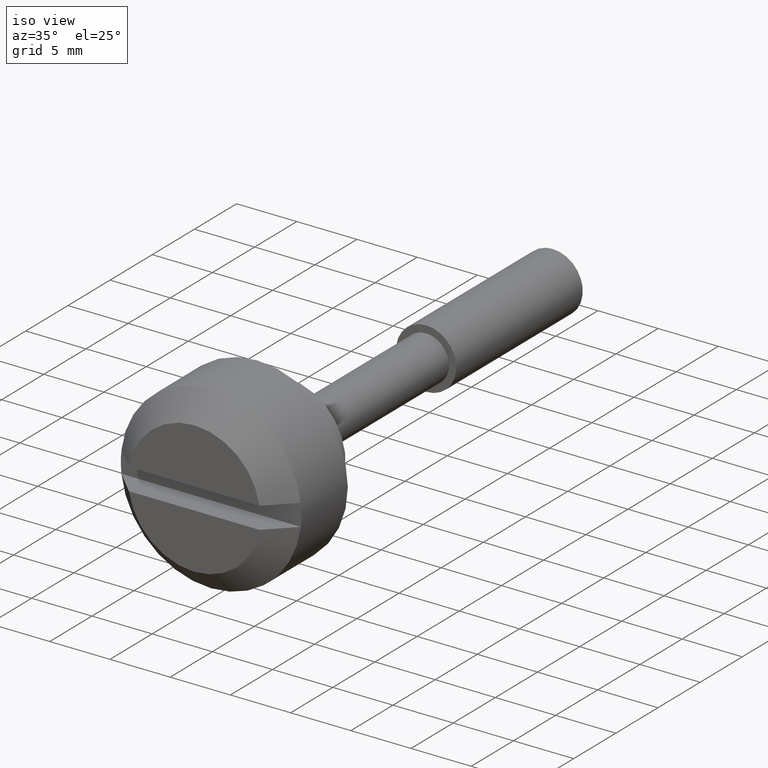
[diagram: clean part render]
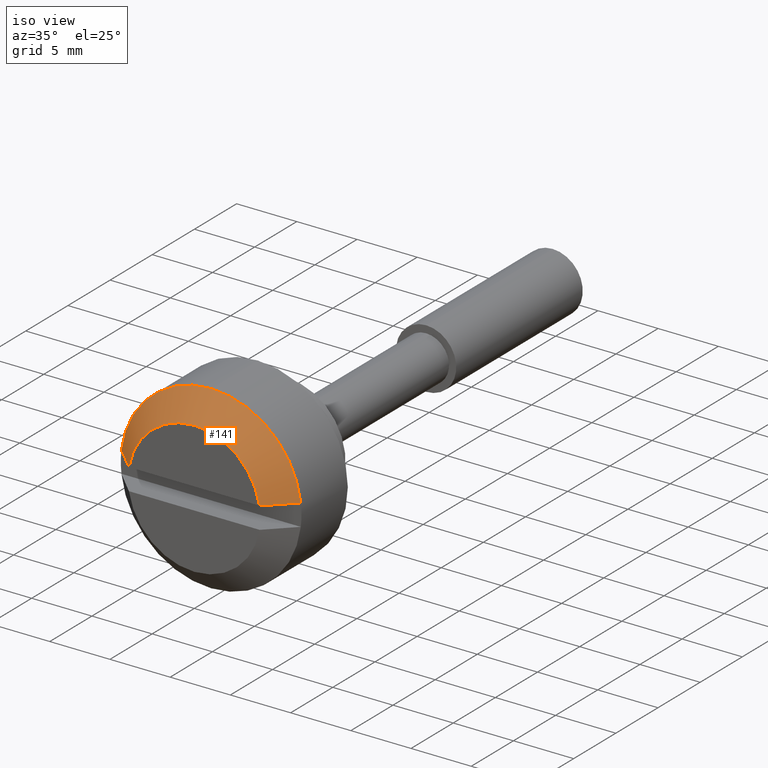
[diagram: same view with one face highlighted and labeled with its STEP entity id]
A machine part, iso view. The second image highlights one B-rep face of the part: STEP entity #141.
In plain terms, the highlighted face is a freeform B-spline surface patch.
Its self-contained STEP definition (entity closure, byte-faithful):
#141=ADVANCED_FACE('',(#450),#449,.T.);
#449=( BOUNDED_SURFACE() B_SPLINE_SURFACE( 2,1,((#735,#736),(#737,#738),(#739,#740),(#741,#742),(#743,#744)), .UNSPECIFIED.,.F.,.F.,.F.) B_SPLINE_SURFACE_WITH_KNOTS((3,2,3),(2,2),(0.00000000000E+00,5.00000000000E-01,1.00000000000E+00),(0.00000000000E+00,1.00000000000E+00), .UNSPECIFIED. ) GEOMETRIC_REPRESENTATION_ITEM() RATIONAL_B_SPLINE_SURFACE(((1.00000000000E+00,1.00000000000E+00),(7.48305015444E-01,7.48305015444E-01),(1.00000000000E+00,1.00000000000E+00),(7.48305015444E-01,7.48305015444E-01),(1.00000000000E+00,1.00000000000E+00))) REPRESENTATION_ITEM('') SURFACE() );
#450=FACE_OUTER_BOUND('',#745,.T.);
#735=CARTESIAN_POINT('',(-1.00004377704E+01,5.45977515462E+00,6.59499867979E-01));
#736=CARTESIAN_POINT('',(-7.99936222960E+00,7.44640985888E+00,8.99470432347E-01));
#737=CARTESIAN_POINT('',(-1.00004377704E+01,4.87514402087E+00,5.49946222987E+00));
#738=CARTESIAN_POINT('',(-7.99936222960E+00,6.64905045947E+00,7.50053777075E+00));
#739=CARTESIAN_POINT('',(-1.00004377704E+01,-2.98918445552E-10,5.49946222961E+00));
#740=CARTESIAN_POINT('',(-7.99936222960E+00,-4.07685107895E-10,7.50053777039E+00));
#741=CARTESIAN_POINT('',(-1.00004377704E+01,-4.87514402146E+00,5.49946222934E+00));
#742=CARTESIAN_POINT('',(-7.99936222960E+00,-6.64905046029E+00,7.50053777003E+00));
#743=CARTESIAN_POINT('',(-1.00004377704E+01,-5.45977515469E+00,6.59499867385E-01));
#744=CARTESIAN_POINT('',(-7.99936222960E+00,-7.44640985898E+00,8.99470431538E-01));
#745=EDGE_LOOP('',(#971,#972,#973,#974,#975));
#971=ORIENTED_EDGE('',*,*,#1106,.T.);
#972=ORIENTED_EDGE('',*,*,#1107,.T.);
#973=ORIENTED_EDGE('',*,*,#1105,.F.);
#974=ORIENTED_EDGE('',*,*,#1092,.F.);
#975=ORIENTED_EDGE('',*,*,#1104,.F.);
#1092=EDGE_CURVE('',#1568,#1569,#1570,.T.);
#1104=EDGE_CURVE('',#1630,#1568,#1649,.T.);
#1105=EDGE_CURVE('',#1569,#1629,#1655,.T.);
#1106=EDGE_CURVE('',#1630,#1661,#1662,.T.);
#1107=EDGE_CURVE('',#1661,#1629,#1668,.T.);
#1568=VERTEX_POINT('',#2051);
#1569=VERTEX_POINT('',#2052);
#1570=CIRCLE('',#2056,5.50000000000E+00);
#1629=VERTEX_POINT('',#2091);
#1630=VERTEX_POINT('',#2092);
#1649=(BOUNDED_CURVE() B_SPLINE_CURVE(3,(#2104,#2105,#2106,#2107),.UNSPECIFIED.,.F.,.F.) B_SPLINE_CURVE_WITH_KNOTS((4,4),(1.27287149362E-02,1.55712763781E-02),.UNSPECIFIED.) CURVE() GEOMETRIC_REPRESENTATION_ITEM() RATIONAL_B_SPLINE_CURVE((1.00000000000E+00,1.00000000000E+00,1.00000000000E+00,1.00000000000E+00)) REPRESENTATION_ITEM('') );
#1655=(BOUNDED_CURVE() B_SPLINE_CURVE(3,(#2108,#2109,#2110,#2111),.UNSPECIFIED.,.F.,.F.) B_SPLINE_CURVE_WITH_KNOTS((4,4),(2.99411617819E-02,3.27847412296E-02),.UNSPECIFIED.) CURVE() GEOMETRIC_REPRESENTATION_ITEM() RATIONAL_B_SPLINE_CURVE((1.00000000000E+00,1.00000000000E+00,1.00000000000E+00,1.00000000000E+00)) REPRESENTATION_ITEM('') );
#1661=VERTEX_POINT('',#2112);
#1662=CIRCLE('',#2116,7.50000000000E+00);
#1668=CIRCLE('',#2120,7.50000000000E+00);
#2051=CARTESIAN_POINT('',(-9.99990000000E+00,-5.42586398650E+00,9.00000000000E-01));
#2052=CARTESIAN_POINT('',(-9.99990000000E+00,5.42586398650E+00,9.00000000000E-01));
#2053=CARTESIAN_POINT('',(-9.99990000000E+00,0.00000000000E+00,0.00000000000E+00));
#2054=DIRECTION('',(-1.00000000000E+00,0.00000000000E+00,0.00000000000E+00));
#2055=DIRECTION('',(-0.00000000000E+00,-0.00000000000E+00,-1.00000000000E+00));
#2056=AXIS2_PLACEMENT_3D('',#2053,#2054,#2055);
#2091=CARTESIAN_POINT('',(-7.99990000000E+00,7.44580418759E+00,9.00000000000E-01));
#2092=CARTESIAN_POINT('',(-7.99990000000E+00,-7.44580418759E+00,9.00000000000E-01));
#2104=CARTESIAN_POINT('',(-7.99990000000E+00,-7.44580418759E+00,9.00000000000E-01));
#2105=CARTESIAN_POINT('',(-8.66746443278E+00,-6.77338075022E+00,9.00000000000E-01));
#2106=CARTESIAN_POINT('',(-9.33446139653E+00,-6.10039477610E+00,9.00000000000E-01));
#2107=CARTESIAN_POINT('',(-9.99990000000E+00,-5.42586398650E+00,9.00000000000E-01));
#2108=CARTESIAN_POINT('',(-9.99990000000E+00,5.42586398650E+00,9.00000000000E-01));
#2109=CARTESIAN_POINT('',(-9.33446199411E+00,6.10039417036E+00,9.00000000000E-01));
#2110=CARTESIAN_POINT('',(-8.66746487102E+00,6.77338030878E+00,9.00000000000E-01));
#2111=CARTESIAN_POINT('',(-7.99990000000E+00,7.44580418759E+00,9.00000000000E-01));
#2112=CARTESIAN_POINT('',(-7.99990000000E+00,1.86247740040E-06,7.50000000000E+00));
#2113=CARTESIAN_POINT('',(-7.99990000000E+00,0.00000000000E+00,0.00000000000E+00));
#2114=DIRECTION('',(-1.00000000000E+00,0.00000000000E+00,0.00000000000E+00));
#2115=DIRECTION('',(-0.00000000000E+00,-0.00000000000E+00,-1.00000000000E+00));
#2116=AXIS2_PLACEMENT_3D('',#2113,#2114,#2115);
#2117=CARTESIAN_POINT('',(-7.99990000000E+00,0.00000000000E+00,0.00000000000E+00));
#2118=DIRECTION('',(-1.00000000000E+00,0.00000000000E+00,0.00000000000E+00));
#2119=DIRECTION('',(-0.00000000000E+00,-0.00000000000E+00,-1.00000000000E+00));
#2120=AXIS2_PLACEMENT_3D('',#2117,#2118,#2119);